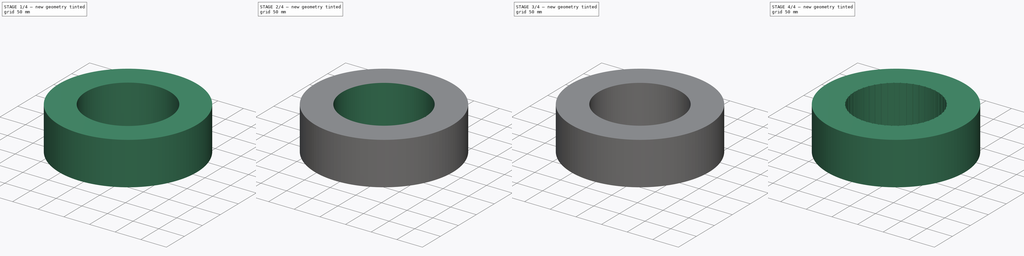
[diagram: build sequence overview — one tinted view per stage of 4, left to right]
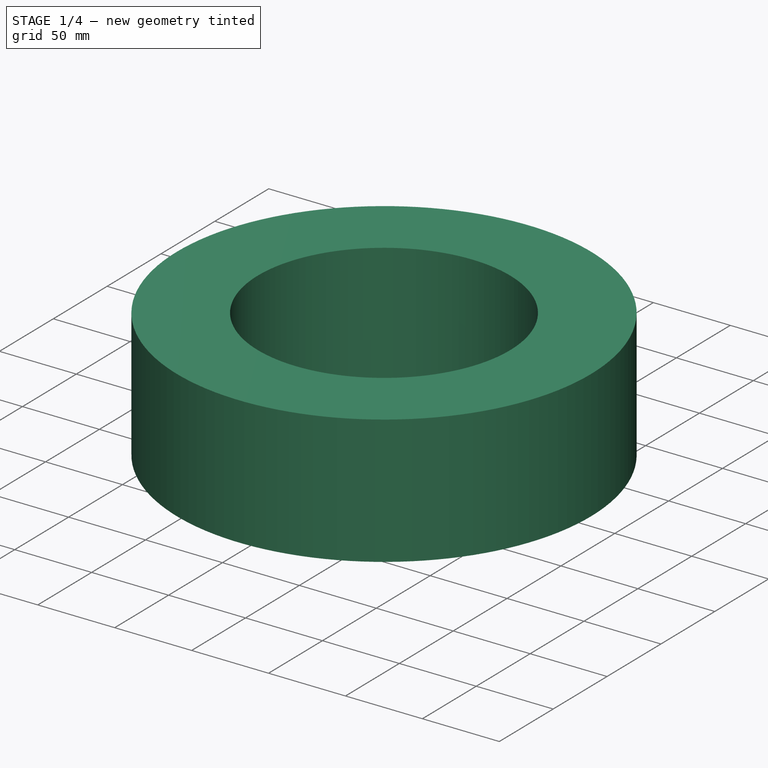
[diagram: stage 1 of 4 — iso view after this stage's code; geometry added in this stage tinted green]
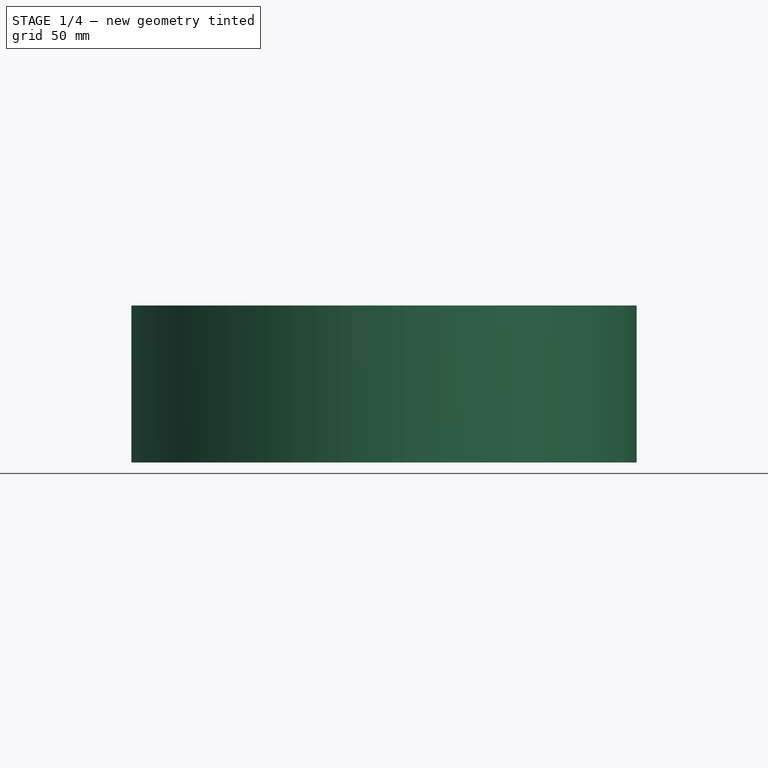
[diagram: stage 1 of 4 — front view after this stage's code; geometry added in this stage tinted green]
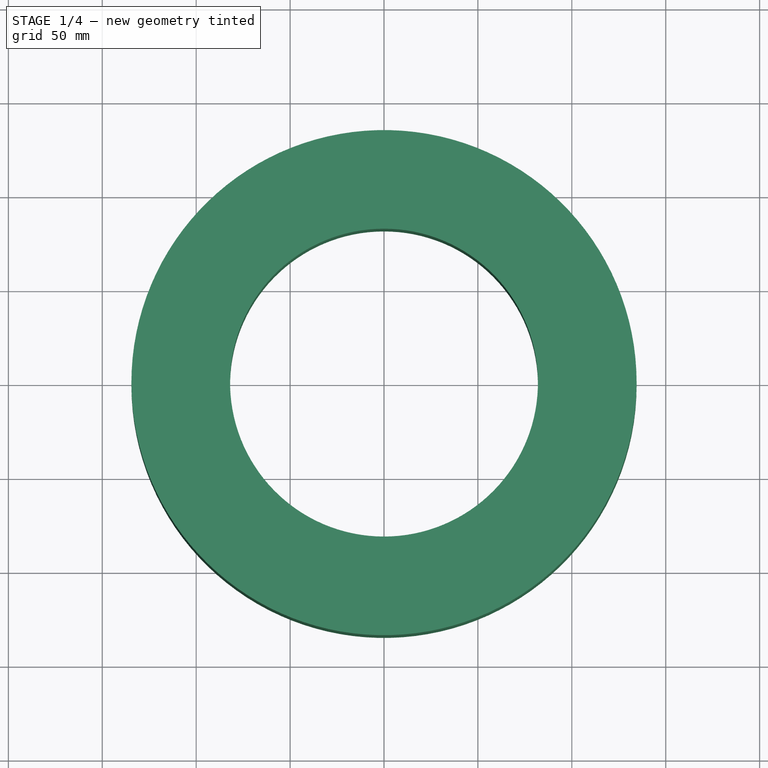
[diagram: stage 1 of 4 — top view after this stage's code; geometry added in this stage tinted green]
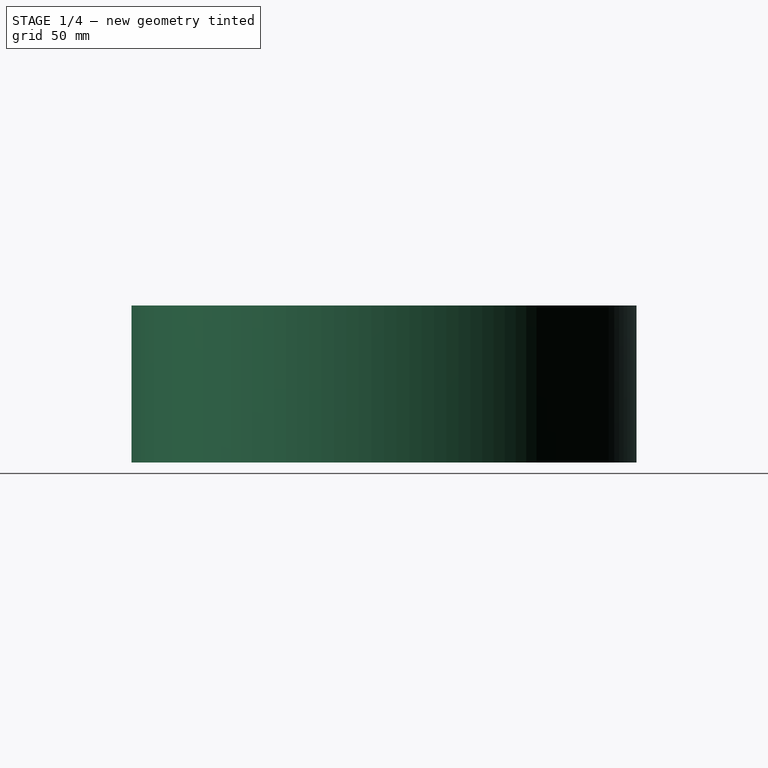
[diagram: stage 1 of 4 — right view after this stage's code; geometry added in this stage tinted green]
FCSTD DOCUMENT  (FreeCAD 0.18R4 (GitTag))
Label: STATOR
License: All rights reserved
LicenseURL: http://en.wikipedia.org/wiki/All_rights_reserved
objects: Sketcher::SketchObject×10, PartDesign::Pad×4, PartDesign::Body×3, PartDesign::Line×2, PartDesign::Pocket×2, PartDesign::PolarPattern×2, Part::Cut×1
note: 30 computed .brp shape members not serialized (recipe doc carries the construction recipe); baked Part::Feature solids carry a one-line shape summary decoded from their .brp

FEATURE [Sketcher::SketchObject] Sketch004
  MapMode = 5
  Placement = pos=(0,0,83.6) rot=(0,0,1;0rad)
  Support = -> [PolarPattern]
  sketch-geometry (2):
    g0: Circle CenterX=0 CenterY=0 CenterZ=0 NormalX=0 NormalY=0 NormalZ=1 AngleXU=0 Radius=80.235
    g1: Circle CenterX=0 CenterY=0 CenterZ=0 NormalX=0 NormalY=0 NormalZ=1 AngleXU=0 Radius=55.5
  constraints (4):
    c: Coincident(g0,g-1)
    c: Diameter(g0) = 160.47
    c: Coincident(g1,g0)
    c: Diameter(g1) = 111
FEATURE [Sketcher::SketchObject] CopySketch004
  Placement = pos=(0,0,0) rot=(1,0,0;3.14159rad)
  sketch-geometry (9):
    g0: ArcOfCircle CenterX=0 CenterY=0 CenterZ=0 NormalX=0 NormalY=0 NormalZ=1 AngleXU=0 Radius=81.965 StartAngle=6.25232 EndAngle=6.27098
    g1: GeomPoint X=81.926 Y=2.52965 Z=0
    g2: GeomPoint X=81.926 Y=-2.52965 Z=0
    g3: LineSegment StartX=81.926 StartY=2.52965 StartZ=0 EndX=111.256 EndY=3.285 EndZ=0
    g4: LineSegment StartX=81.926 StartY=-2.52965 StartZ=0 EndX=111.256 EndY=-3.285 EndZ=0
    g5: LineSegment [constr] StartX=111.256 StartY=3.285 StartZ=0 EndX=111.256 EndY=-3.285 EndZ=0
    g6: ArcOfCircle CenterX=111.256 CenterY=7e-15 CenterZ=0 NormalX=0 NormalY=0 NormalZ=1 AngleXU=0 Radius=3.285 StartAngle=4.71239 EndAngle=7.85398
    g7: ArcOfCircle CenterX=0 CenterY=0 CenterZ=0 NormalX=0 NormalY=0 NormalZ=1 AngleXU=0 Radius=81.965 StartAngle=0.0122006 EndAngle=0.0308674
    g8: LineSegment StartX=81.9589 StartY=1 StartZ=0 EndX=81.9589 EndY=-1 EndZ=0
  constraints (25):
    c: Coincident(g0,g-1)
    c: Diameter(g0) = 163.93
    c: PointOnObject(g1,g0)
    c: PointOnObject(g2,g0)
    c: Coincident(g3,g1)
    c: Coincident(g4,g2)
    c: Distance(g3) = 29.34
    c: Distance(g4) = 29.34
    c: Distance(g3,g4) = 6.57
    c: Coincident(g5,g3)
    c: Coincident(g5,g4)
    c: Vertical(g5)
    c: Coincident(g6,g3)
    c: Coincident(g6,g4)
    c: PointOnObject(g6,g5)
    c: PointOnObject(g0,g4)
    c: PointOnObject(g7,g3)
    c: Equal(g0,g7)
    c: Coincident(g0,g7)
    c: Distance(g7,g1) = 1.53
    c: Distance(g0,g0) = 1.53
    c: Vertical(g8)
    c: Distance(g8) = 2
    c: Coincident(g8,g0)
    c: Coincident(g8,g7)
FEATURE [PartDesign::Body] Body  label="Stator"
  Group = -> [Sketch,DatumLine,Pad,Pocket,PolarPattern,Sketch004,CopySketch004]
  Origin = -> Origin
  Tip = -> PolarPattern
FEATURE [Sketcher::SketchObject] CopySketch005  label="Winding001"
  MapMode = 5
  Support = -> [XY_Plane001]
  sketch-geometry (9):
    g0: ArcOfCircle CenterX=0 CenterY=0 CenterZ=0 NormalX=0 NormalY=0 NormalZ=1 AngleXU=0 Radius=81.965 StartAngle=6.25232 EndAngle=6.27098
    g1: GeomPoint X=81.926 Y=2.52965 Z=0
    g2: GeomPoint X=81.926 Y=-2.52965 Z=0
    g3: LineSegment StartX=81.926 StartY=2.52965 StartZ=0 EndX=111.256 EndY=3.285 EndZ=0
    g4: LineSegment StartX=81.926 StartY=-2.52965 StartZ=0 EndX=111.256 EndY=-3.285 EndZ=0
    g5: LineSegment [constr] StartX=111.256 StartY=3.285 StartZ=0 EndX=111.256 EndY=-3.285 EndZ=0
    g6: ArcOfCircle CenterX=111.256 CenterY=7e-15 CenterZ=0 NormalX=0 NormalY=0 NormalZ=1 AngleXU=0 Radius=3.285 StartAngle=4.71239 EndAngle=7.85398
    g7: ArcOfCircle CenterX=0 CenterY=0 CenterZ=0 NormalX=0 NormalY=0 NormalZ=1 AngleXU=0 Radius=81.965 StartAngle=0.0122006 EndAngle=0.0308674
    g8: LineSegment StartX=81.9589 StartY=1 StartZ=0 EndX=81.9589 EndY=-1 EndZ=0
  constraints (25):
    c: Coincident(g0,g-1)
    c: Diameter(g0) = 163.93
    c: PointOnObject(g1,g0)
    c: PointOnObject(g2,g0)
    c: Coincident(g3,g1)
    c: Coincident(g4,g2)
    c: Distance(g3) = 29.34
    c: Distance(g4) = 29.34
    c: Distance(g3,g4) = 6.57
    c: Coincident(g5,g3)
    c: Coincident(g5,g4)
    c: Vertical(g5)
    c: Coincident(g6,g3)
    c: Coincident(g6,g4)
    c: PointOnObject(g6,g5)
    c: PointOnObject(g0,g4)
    c: PointOnObject(g7,g3)
    c: Equal(g0,g7)
    c: Coincident(g0,g7)
    c: Distance(g7,g1) = 1.53
    c: Distance(g0,g0) = 1.53
    c: Vertical(g8)
    c: Distance(g8) = 2
    c: Coincident(g8,g0)
    c: Coincident(g8,g7)
FEATURE [PartDesign::Pad] Pad001
  Length = 83.6
  Length2 = 100
  Profile = -> CopySketch005
  Type = 0
FEATURE [Sketcher::SketchObject] Sketch005
  MapMode = 5
  Support = -> [XY_Plane001]
  sketch-geometry (2):
    g0: Circle CenterX=0 CenterY=0 CenterZ=0 NormalX=0 NormalY=0 NormalZ=1 AngleXU=0 Radius=134.5
    g1: Circle CenterX=0 CenterY=0 CenterZ=0 NormalX=0 NormalY=0 NormalZ=1 AngleXU=0 Radius=81.965
  constraints (4):
    c: Coincident(g0,g-1)
    c: Coincident(g1,g0)
    c: Diameter(g0) = 269
    c: Diameter(g1) = 163.93
FEATURE [PartDesign::Pad] Pad002
  BaseFeature = -> Pad001
  Length = 83.6
  Length2 = 100
  Profile = -> Sketch005
  Type = 0
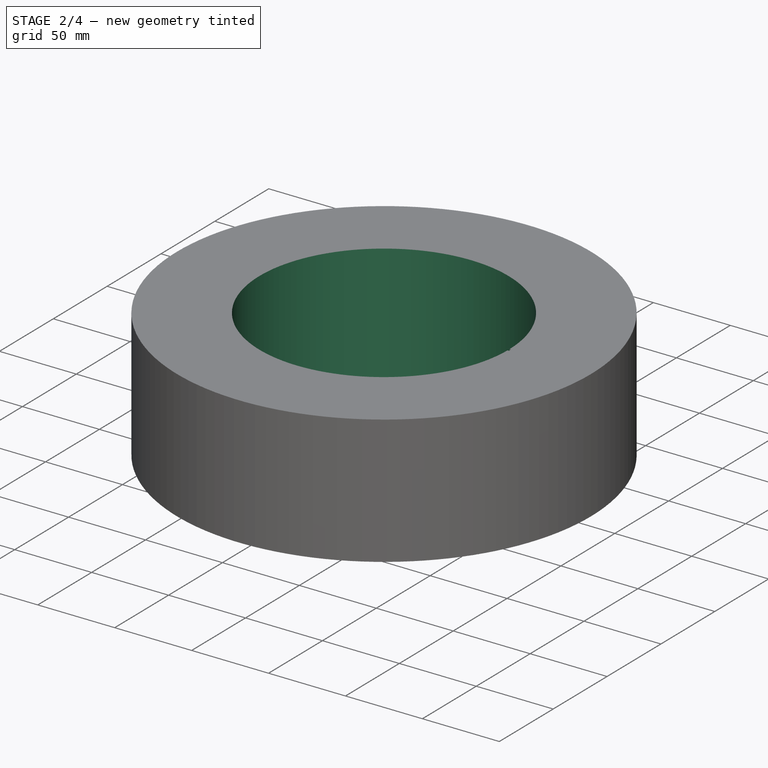
[diagram: stage 2 of 4 — iso view after this stage's code; geometry added in this stage tinted green]
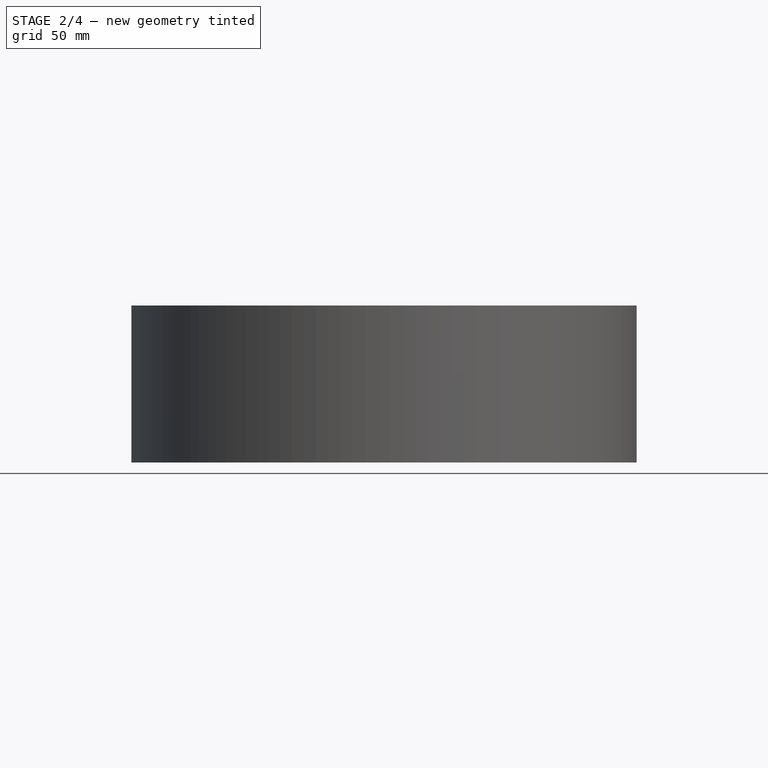
[diagram: stage 2 of 4 — front view after this stage's code; geometry added in this stage tinted green]
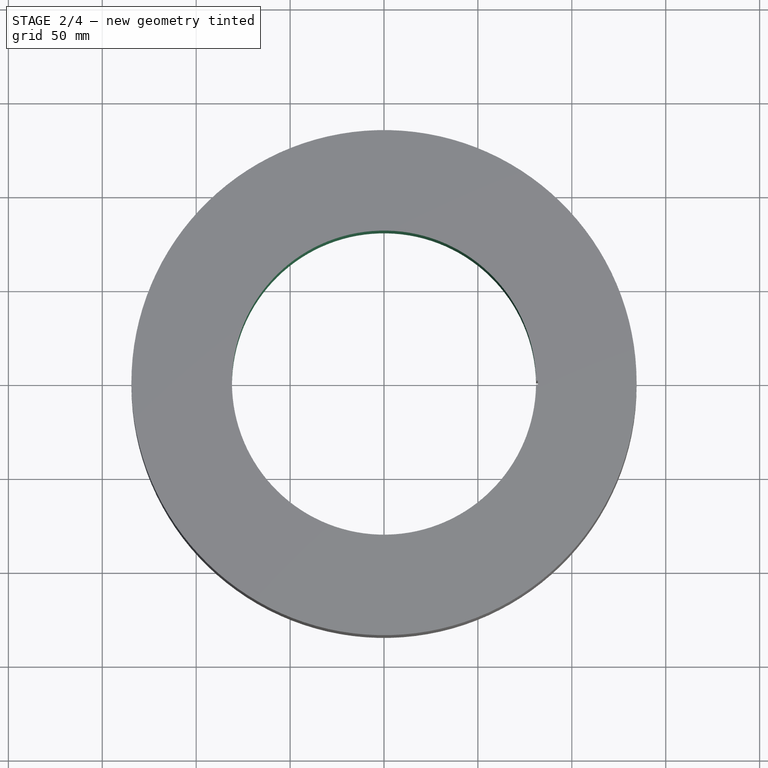
[diagram: stage 2 of 4 — top view after this stage's code; geometry added in this stage tinted green]
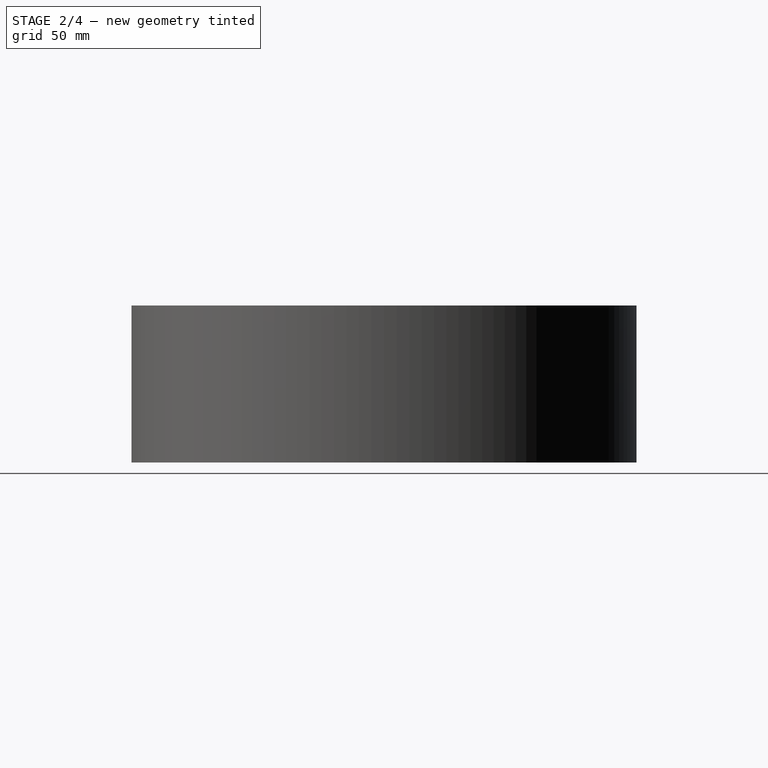
[diagram: stage 2 of 4 — right view after this stage's code; geometry added in this stage tinted green]
FEATURE [Sketcher::SketchObject] Sketch
  MapMode = 5
  Support = -> [XY_Plane]
  sketch-geometry (2):
    g0: Circle CenterX=0 CenterY=0 CenterZ=0 NormalX=0 NormalY=0 NormalZ=1 AngleXU=0 Radius=134.5
    g1: Circle CenterX=0 CenterY=0 CenterZ=0 NormalX=0 NormalY=0 NormalZ=1 AngleXU=0 Radius=80.965
  constraints (4):
    c: Coincident(g0,g-1)
    c: Radius(g0) = 134.5
    c: Coincident(g1,g0)
    c: Radius(g1) = 80.965
FEATURE [PartDesign::Line] DatumLine
  AttacherType = Attacher::AttachEngineLine
  MapMode = 16
  Placement = pos=(0,0,0) rot=(0.57735,0.57735,0.57735;2.0944rad)
  Support = -> [Sketch]
FEATURE [PartDesign::Pad] Pad
  Length = 83.6
  Length2 = 100
  Profile = -> Sketch
  Type = 0
FEATURE [Sketcher::SketchObject] CopySketch003
  Placement = pos=(0,0,0) rot=(1,0,0;3.14159rad)
  sketch-geometry (11):
    g0: LineSegment StartX=80.9589 StartY=1 StartZ=0 EndX=81.9589 EndY=1 EndZ=0
    g1: LineSegment StartX=81.9589 StartY=-1 StartZ=0 EndX=80.9589 EndY=-1 EndZ=0
    g2: ArcOfCircle CenterX=0 CenterY=0 CenterZ=0 NormalX=0 NormalY=0 NormalZ=1 AngleXU=0 Radius=81.965 StartAngle=6.25232 EndAngle=6.27098
    g3: GeomPoint X=81.926 Y=2.52965 Z=0
    g4: GeomPoint X=81.926 Y=-2.52965 Z=0
    g5: LineSegment StartX=81.926 StartY=2.52965 StartZ=0 EndX=111.256 EndY=3.285 EndZ=0
    g6: LineSegment StartX=81.926 StartY=-2.52965 StartZ=0 EndX=111.256 EndY=-3.285 EndZ=0
    g7: LineSegment [constr] StartX=111.256 StartY=3.285 StartZ=0 EndX=111.256 EndY=-3.285 EndZ=0
    g8: ArcOfCircle CenterX=111.256 CenterY=1.38e-14 CenterZ=0 NormalX=0 NormalY=0 NormalZ=1 AngleXU=0 Radius=3.285 StartAngle=4.71239 EndAngle=7.85398
    g9: LineSegment StartX=80.9589 StartY=1 StartZ=0 EndX=80.9589 EndY=-1 EndZ=0
    g10: ArcOfCircle CenterX=0 CenterY=0 CenterZ=0 NormalX=0 NormalY=0 NormalZ=1 AngleXU=0 Radius=81.965 StartAngle=0.0122006 EndAngle=0.0308674
  constraints (31):
    c: Horizontal(g0)
    c: Horizontal(g1)
    c: Coincident(g2,g-1)
    c: Diameter(g2) = 163.93
    c: PointOnObject(g3,g2)
    c: DistanceY(g2,g0) = 1
    c: PointOnObject(g4,g2)
    c: Coincident(g5,g3)
    c: Coincident(g6,g4)
    c: Distance(g5) = 29.34
    c: Distance(g6) = 29.34
    c: Distance(g5,g6) = 6.57
    c: Coincident(g7,g5)
    c: Coincident(g7,g6)
    c: Vertical(g7)
    c: Coincident(g8,g5)
    c: Coincident(g8,g6)
    c: PointOnObject(g8,g7)
    c: PointOnObject(g2,g6)
    c: PointOnObject(g10,g5)
    c: Equal(g0,g1)
    c: Coincident(g9,g0)
    c: Coincident(g9,g1)
    c: Equal(g2,g10)
    c: Coincident(g2,g1)
    c: Coincident(g10,g0)
    c: Coincident(g2,g10)
    c: Distance(g0) = 1
    c: Distance(g0,g3) = 1.53
    c: Distance(g1,g2) = 1.53
    c: Distance(g9) = 2
FEATURE [PartDesign::Pocket] Pocket
  BaseFeature = -> Pad
  Length = 5
  Length2 = 100
  Profile = -> CopySketch003
  Type = 1
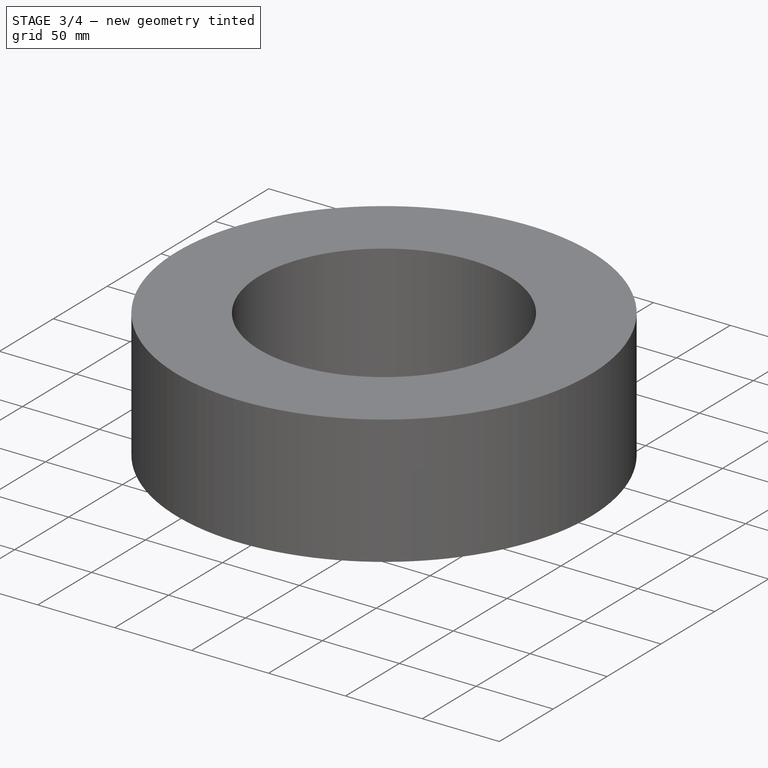
[diagram: stage 3 of 4 — iso view after this stage's code; geometry added in this stage tinted green]
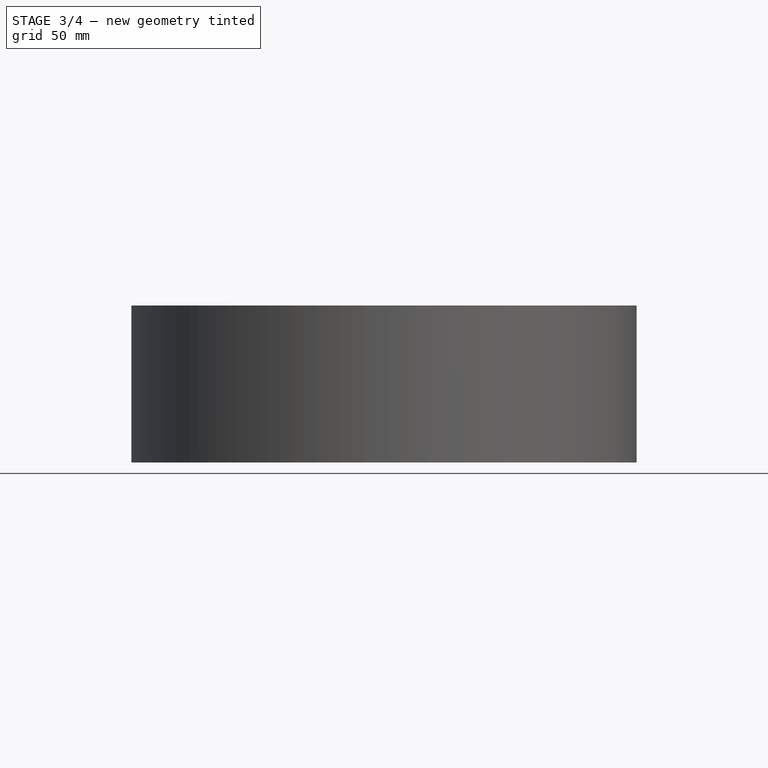
[diagram: stage 3 of 4 — front view after this stage's code; geometry added in this stage tinted green]
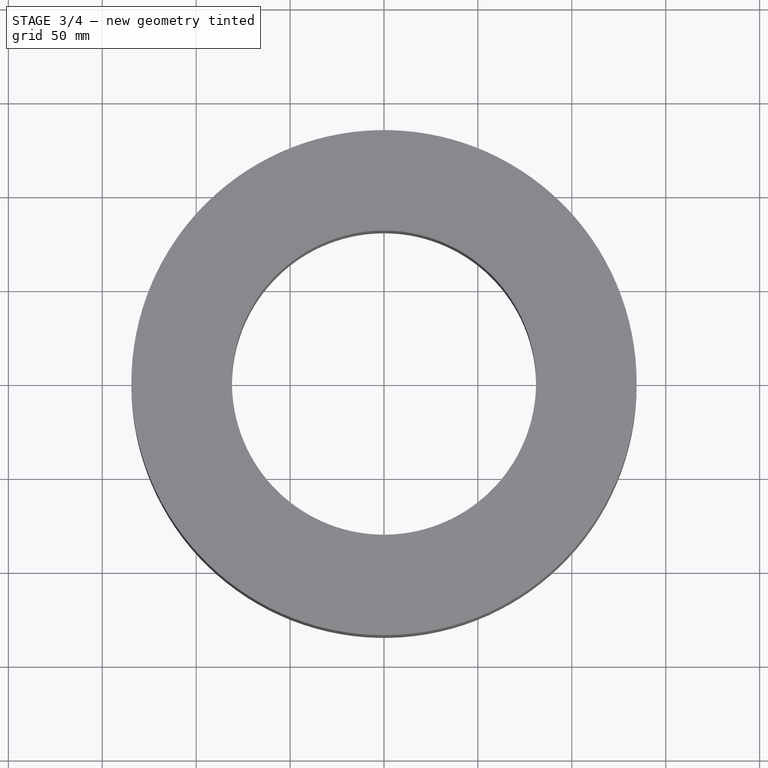
[diagram: stage 3 of 4 — top view after this stage's code; geometry added in this stage tinted green]
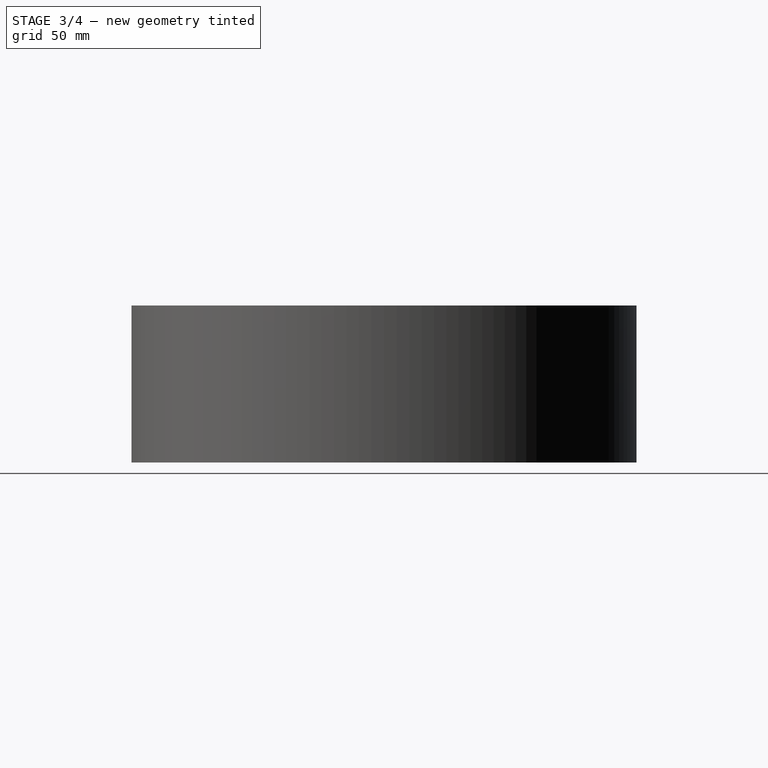
[diagram: stage 3 of 4 — right view after this stage's code; geometry added in this stage tinted green]
FEATURE [PartDesign::PolarPattern] PolarPattern
  Angle = 360
  Axis = -> CopySketch003 [N_Axis]
  BaseFeature = -> Pocket
  Occurrences = 48
  Originals = -> [Pocket]
FEATURE [PartDesign::Body] Body001  label="Winding"
  Group = -> [CopySketch005,Pad001,Sketch005,Pad002]
  Origin = -> Origin001
  Tip = -> Pad002
FEATURE [Sketcher::SketchObject] CopySketch006
  Placement = pos=(0,0,0) rot=(1,0,0;3.14159rad)
  sketch-geometry (11):
    g0: LineSegment StartX=80.9589 StartY=1 StartZ=0 EndX=81.9589 EndY=1 EndZ=0
    g1: LineSegment StartX=81.9589 StartY=-1 StartZ=0 EndX=80.9589 EndY=-1 EndZ=0
    g2: ArcOfCircle CenterX=0 CenterY=0 CenterZ=0 NormalX=0 NormalY=0 NormalZ=1 AngleXU=0 Radius=81.965 StartAngle=6.25232 EndAngle=6.27098
    g3: GeomPoint X=81.926 Y=2.52965 Z=0
    g4: GeomPoint X=81.926 Y=-2.52965 Z=0
    g5: LineSegment StartX=81.926 StartY=2.52965 StartZ=0 EndX=111.256 EndY=3.285 EndZ=0
    g6: LineSegment StartX=81.926 StartY=-2.52965 StartZ=0 EndX=111.256 EndY=-3.285 EndZ=0
    g7: LineSegment [constr] StartX=111.256 StartY=3.285 StartZ=0 EndX=111.256 EndY=-3.285 EndZ=0
    g8: ArcOfCircle CenterX=111.256 CenterY=1.38e-14 CenterZ=0 NormalX=0 NormalY=0 NormalZ=1 AngleXU=0 Radius=3.285 StartAngle=4.71239 EndAngle=7.85398
    g9: LineSegment StartX=80.9589 StartY=1 StartZ=0 EndX=80.9589 EndY=-1 EndZ=0
    g10: ArcOfCircle CenterX=0 CenterY=0 CenterZ=0 NormalX=0 NormalY=0 NormalZ=1 AngleXU=0 Radius=81.965 StartAngle=0.0122006 EndAngle=0.0308674
  constraints (31):
    c: Horizontal(g0)
    c: Horizontal(g1)
    c: Coincident(g2,g-1)
    c: Diameter(g2) = 163.93
    c: PointOnObject(g3,g2)
    c: DistanceY(g2,g0) = 1
    c: PointOnObject(g4,g2)
    c: Coincident(g5,g3)
    c: Coincident(g6,g4)
    c: Distance(g5) = 29.34
    c: Distance(g6) = 29.34
    c: Distance(g5,g6) = 6.57
    c: Coincident(g7,g5)
    c: Coincident(g7,g6)
    c: Vertical(g7)
    c: Coincident(g8,g5)
    c: Coincident(g8,g6)
    c: PointOnObject(g8,g7)
    c: PointOnObject(g2,g6)
    c: PointOnObject(g10,g5)
    c: Equal(g0,g1)
    c: Coincident(g9,g0)
    c: Coincident(g9,g1)
    c: Equal(g2,g10)
    c: Coincident(g2,g1)
    c: Coincident(g10,g0)
    c: Coincident(g2,g10)
    c: Distance(g0) = 1
    c: Distance(g0,g3) = 1.53
    c: Distance(g1,g2) = 1.53
    c: Distance(g9) = 2
FEATURE [Sketcher::SketchObject] CopySketch007
  Placement = pos=(0,0,0) rot=(1,0,0;3.14159rad)
  sketch-geometry (9):
    g0: ArcOfCircle CenterX=0 CenterY=0 CenterZ=0 NormalX=0 NormalY=0 NormalZ=1 AngleXU=0 Radius=81.965 StartAngle=6.25232 EndAngle=6.27098
    g1: GeomPoint X=81.926 Y=2.52965 Z=0
    g2: GeomPoint X=81.926 Y=-2.52965 Z=0
    g3: LineSegment StartX=81.926 StartY=2.52965 StartZ=0 EndX=111.256 EndY=3.285 EndZ=0
    g4: LineSegment StartX=81.926 StartY=-2.52965 StartZ=0 EndX=111.256 EndY=-3.285 EndZ=0
    g5: LineSegment [constr] StartX=111.256 StartY=3.285 StartZ=0 EndX=111.256 EndY=-3.285 EndZ=0
    g6: ArcOfCircle CenterX=111.256 CenterY=7e-15 CenterZ=0 NormalX=0 NormalY=0 NormalZ=1 AngleXU=0 Radius=3.285 StartAngle=4.71239 EndAngle=7.85398
    g7: ArcOfCircle CenterX=0 CenterY=0 CenterZ=0 NormalX=0 NormalY=0 NormalZ=1 AngleXU=0 Radius=81.965 StartAngle=0.0122006 EndAngle=0.0308674
    g8: LineSegment StartX=81.9589 StartY=1 StartZ=0 EndX=81.9589 EndY=-1 EndZ=0
  constraints (25):
    c: Coincident(g0,g-1)
    c: Diameter(g0) = 163.93
    c: PointOnObject(g1,g0)
    c: PointOnObject(g2,g0)
    c: Coincident(g3,g1)
    c: Coincident(g4,g2)
    c: Distance(g3) = 29.34
    c: Distance(g4) = 29.34
    c: Distance(g3,g4) = 6.57
    c: Coincident(g5,g3)
    c: Coincident(g5,g4)
    c: Vertical(g5)
    c: Coincident(g6,g3)
    c: Coincident(g6,g4)
    c: PointOnObject(g6,g5)
    c: PointOnObject(g0,g4)
    c: PointOnObject(g7,g3)
    c: Equal(g0,g7)
    c: Coincident(g0,g7)
    c: Distance(g7,g1) = 1.53
    c: Distance(g0,g0) = 1.53
    c: Vertical(g8)
    c: Distance(g8) = 2
    c: Coincident(g8,g0)
    c: Coincident(g8,g7)
FEATURE [Sketcher::SketchObject] Sketch006
  MapMode = 5
  Support = -> [XY_Plane002]
  sketch-geometry (2):
    g0: Circle CenterX=0 CenterY=0 CenterZ=0 NormalX=0 NormalY=0 NormalZ=1 AngleXU=0 Radius=134.5
    g1: Circle CenterX=0 CenterY=0 CenterZ=0 NormalX=0 NormalY=0 NormalZ=1 AngleXU=0 Radius=80.965
  constraints (4):
    c: Coincident(g0,g-1)
    c: Radius(g0) = 134.5
    c: Coincident(g1,g0)
    c: Radius(g1) = 80.965
FEATURE [PartDesign::Pad] Pad003
  Length = 83.6
  Length2 = 100
  Profile = -> Sketch006
  Type = 0
FEATURE [Sketcher::SketchObject] Sketch007
  MapMode = 5
  Placement = pos=(0,0,83.6) rot=(0,0,1;0rad)
  Support = -> [PolarPattern001]
  sketch-geometry (2):
    g0: Circle CenterX=0 CenterY=0 CenterZ=0 NormalX=0 NormalY=0 NormalZ=1 AngleXU=0 Radius=80.235
    g1: Circle CenterX=0 CenterY=0 CenterZ=0 NormalX=0 NormalY=0 NormalZ=1 AngleXU=0 Radius=55.5
  constraints (4):
    c: Coincident(g0,g-1)
    c: Diameter(g0) = 160.47
    c: Coincident(g1,g0)
    c: Diameter(g1) = 111
FEATURE [PartDesign::Line] DatumLine001
  AttacherType = Attacher::AttachEngineLine
  MapMode = 16
  Placement = pos=(0,0,0) rot=(0.57735,0.57735,0.57735;2.0944rad)
  Support = -> [Sketch006]
FEATURE [PartDesign::Body] Body002  label="Stator001"
  Group = -> [Sketch006,DatumLine001,Pad003,Pocket001,PolarPattern001,Sketch007,CopySketch007]
  Origin = -> Origin002
  Tip = -> PolarPattern001
FEATURE [Part::Cut] Cut
  Base = -> Body001
  Tool = -> Body
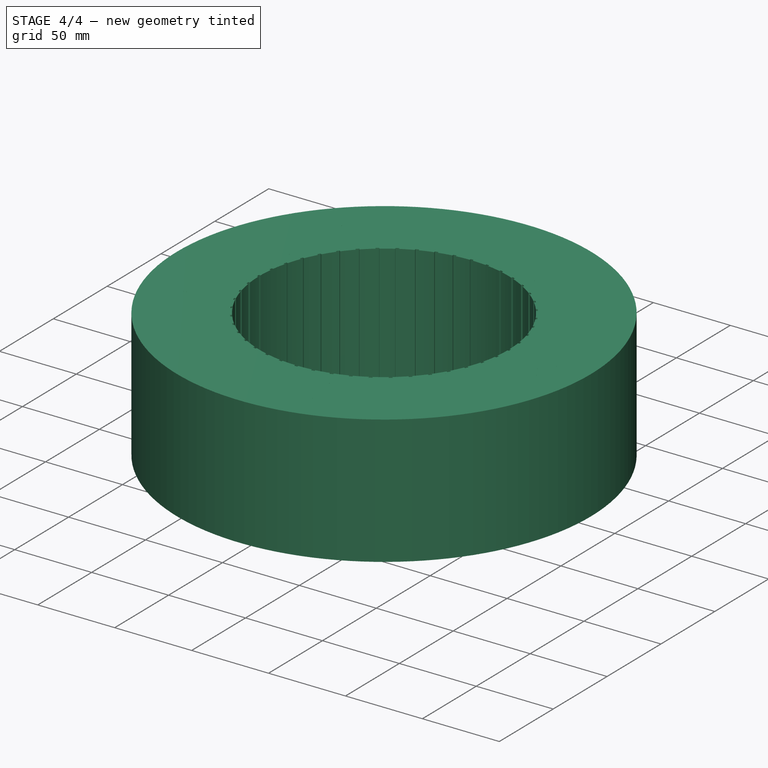
[diagram: stage 4 of 4 — iso view after this stage's code; geometry added in this stage tinted green]
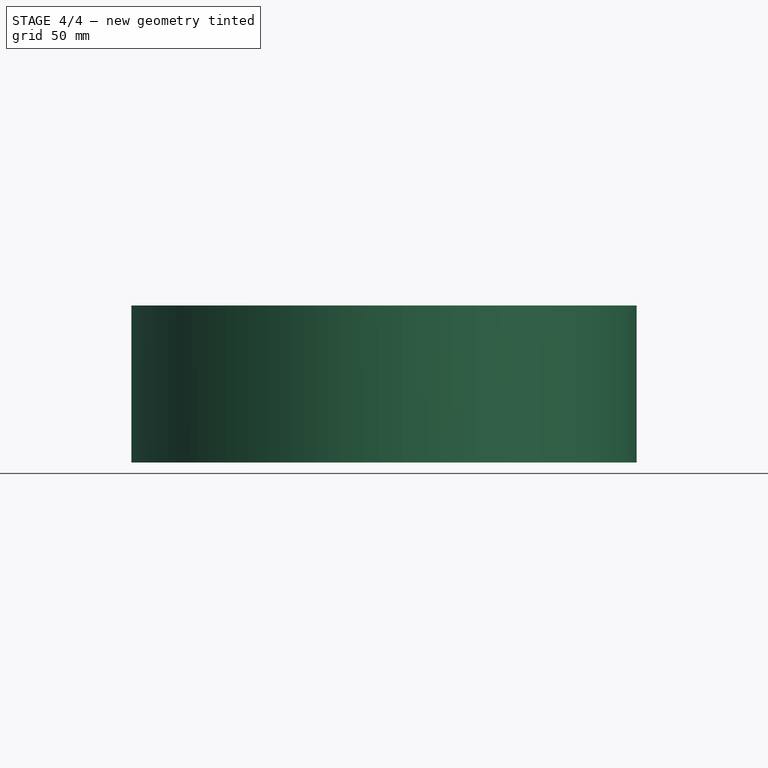
[diagram: stage 4 of 4 — front view after this stage's code; geometry added in this stage tinted green]
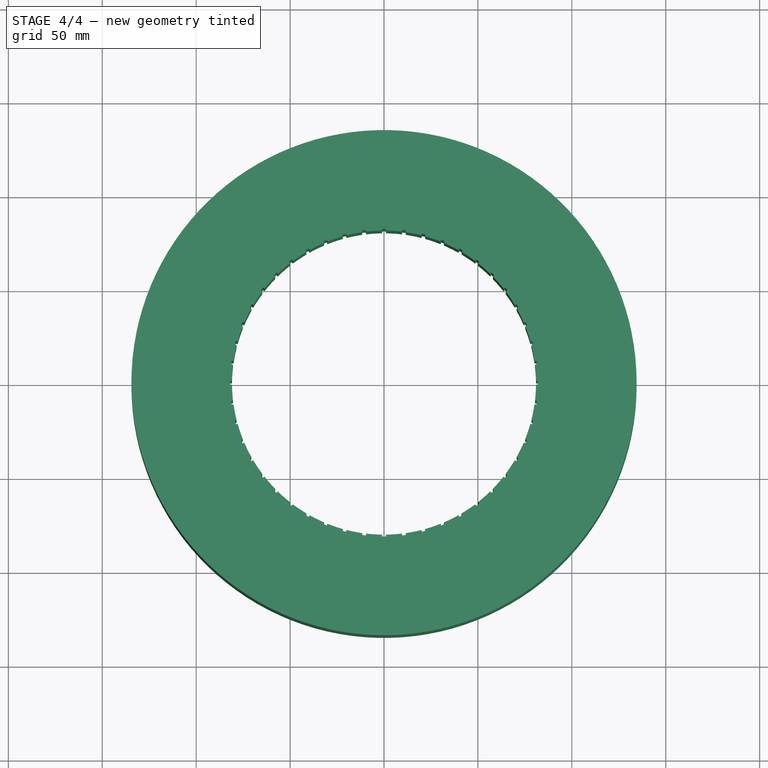
[diagram: stage 4 of 4 — top view after this stage's code; geometry added in this stage tinted green]
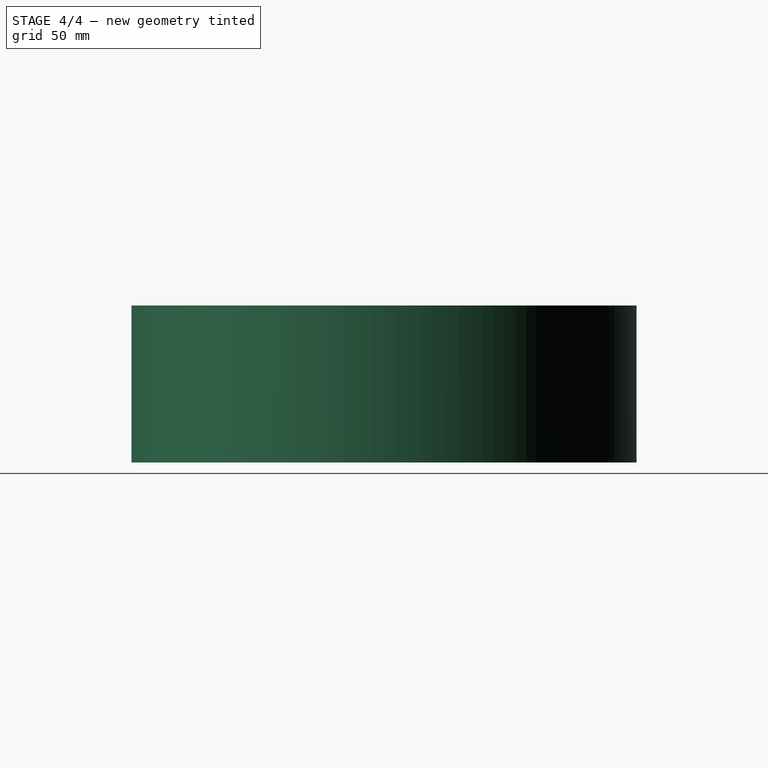
[diagram: stage 4 of 4 — right view after this stage's code; geometry added in this stage tinted green]
FEATURE [PartDesign::Pocket] Pocket001
  BaseFeature = -> Pad003
  Length = 5
  Length2 = 100
  Profile = -> CopySketch006
  Type = 1
FEATURE [PartDesign::PolarPattern] PolarPattern001
  Angle = 360
  Axis = -> CopySketch006 [N_Axis]
  BaseFeature = -> Pocket001
  Occurrences = 48
  Originals = -> [Pocket001]
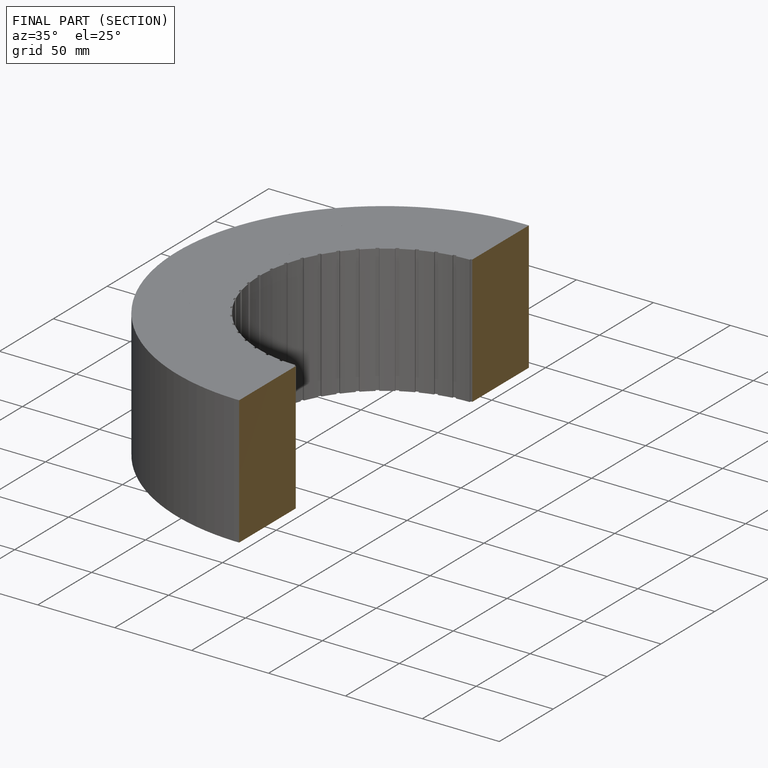
[diagram: finished part — half-section view (interior)]
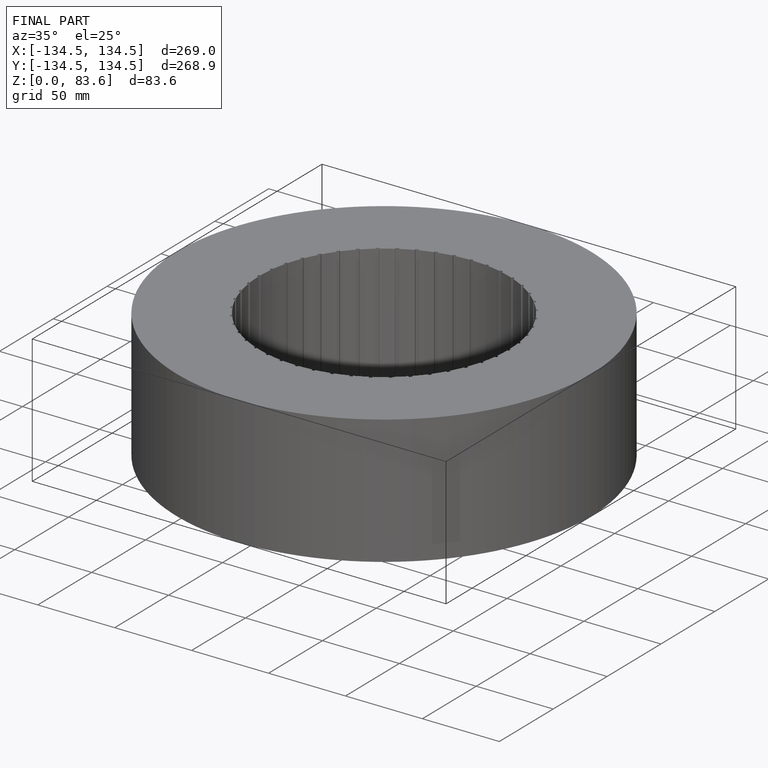
[diagram: finished part — iso view with bounding-box wireframe]
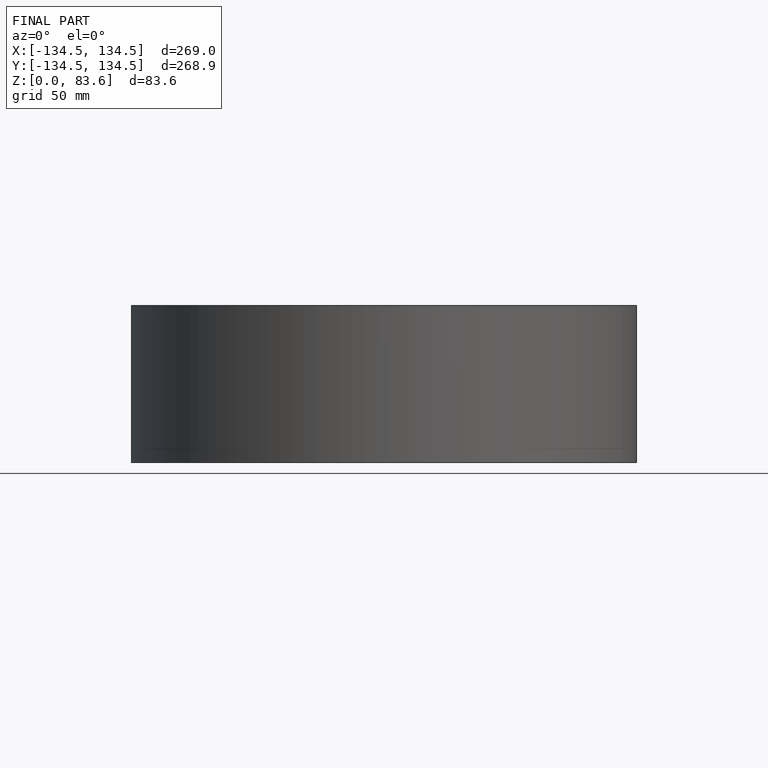
[diagram: finished part — front view with bounding-box wireframe]
